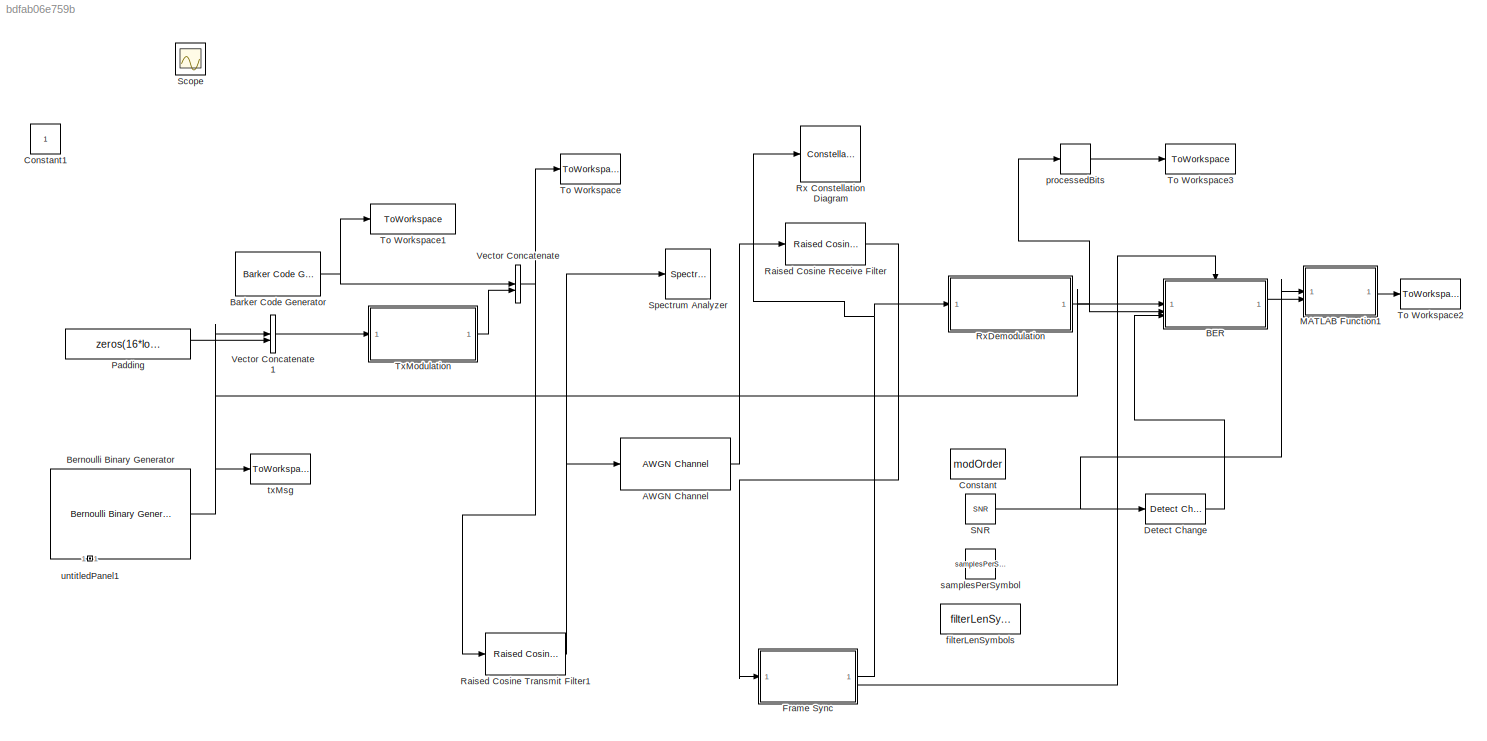
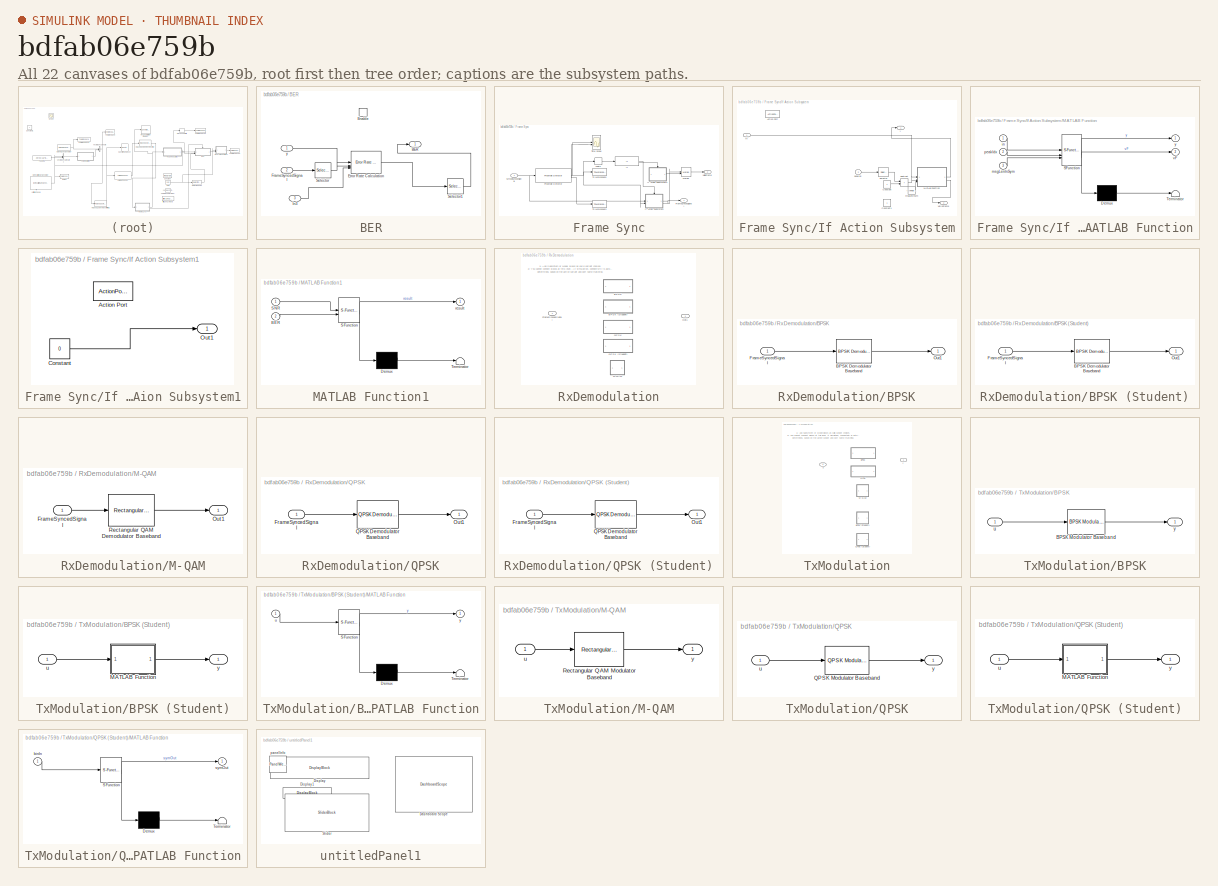
[diagram: thumbnail index - all 22 canvases of the model, root first then tree order]
MODEL slx_bdfab06e759b
KIND model
CONFIG AbsTol = auto
CONFIG EnableMultiTasking = off
CONFIG FixedStep = auto
CONFIG MaxStep = auto
CONFIG MinStep = auto
CONFIG RelTol = 1e-3
CONFIG SampleTimeConstraint = Unconstrained
CONFIG SolverName = VariableStepAuto
CONFIG StartTime = 0.0
CONFIG StopTime = 10
WORKSPACE source: mxarray member
WORKSPACE iSNR = 1
WORKSPACE x = 0
BLOCK [Reference] AWGN Channel  REF=commchan3/AWGN
Channel
  SourceBlock = commchan3/AWGN\nChannel
  SourceType = AWGN Channel
BLOCK [SubSystem] BER
  TreatAsAtomicUnit = on
BLOCK [Outport] BER/BER
BLOCK [EnablePort] BER/Enable
  PropagateVarSize = During execution
BLOCK [Reference] BER/Error Rate Calculation  REF=commsink2/Error Rate
Calculation
  LibrarySourceBlock = commhdlsink/Error Rate\nCalculation
  SourceBlock = commsink2/Error Rate\nCalculation
  SourceType = Error Rate Calculation
BLOCK [Inport] BER/FrameSyncedSignal
  Port = 2
BLOCK [Inport] BER/In3
  Port = 3
BLOCK [Selector] BER/Selector
  IndexOptions = Starting index (dialog)
  Indices = 1
  OutputSizes = (symRate  - 13 -16) * log2(modOrder)
BLOCK [Selector] BER/Selector1
  IndexOptions = Index vector (dialog)
  Indices = 1
  InputPortWidth = 3
  OutputSizes = 1
BLOCK [Inport] BER/y
BLOCK [Reference] Barker Code Generator  REF=commseqgen3/Barker Code
Generator
  SourceBlock = commseqgen3/Barker Code\nGenerator
  SourceType = Barker Code Generator
BLOCK [Reference] Bernoulli Binary Generator  REF=commrandsrc3/Bernoulli Binary
Generator
  SourceBlock = commrandsrc3/Bernoulli Binary\nGenerator
  SourceType = Bernoulli Binary Generator
BLOCK [Constant] Constant
  Value = modOrder
BLOCK [Constant] Constant1
  IOType = siggen
BLOCK [Reference] Detect Change  REF=simulink/Logic and Bit
Operations/Detect
Change
  SourceBlock = simulink/Logic and Bit\nOperations/Detect\nChange
  SourceType = Detect Change
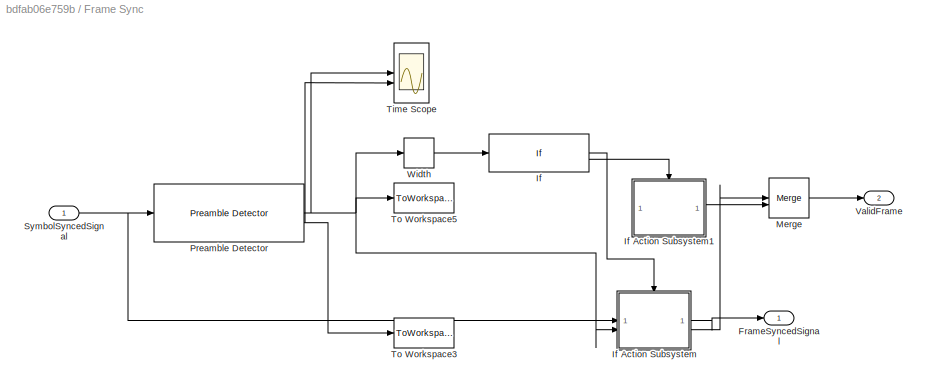
BLOCK [SubSystem] Frame Sync
BLOCK [Outport] Frame Sync/FrameSyncedSignal
BLOCK [If] Frame Sync/If
BLOCK [SubSystem] Frame Sync/If Action Subsystem
  TreatAsAtomicUnit = on
BLOCK [ActionPort] Frame Sync/If Action Subsystem/Action Port
  ActionPortLabel = if(u1 > 0)
  PropagateVarSize = During execution
BLOCK [Constant] Frame Sync/If Action Subsystem/Constant
BLOCK [Constant] Frame Sync/If Action Subsystem/Constant1
  Commented = on
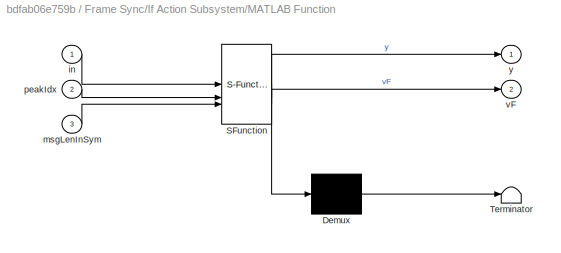
BLOCK [SubSystem] Frame Sync/If Action Subsystem/MATLAB Function
  ErrorFcn = Stateflow.Translate.translate
  PermitHierarchicalResolution = ExplicitOnly
  SFBlockType = MATLAB Function
  TreatAsAtomicUnit = on
BLOCK [Demux] Frame Sync/If Action Subsystem/MATLAB Function/ Demux 
  Outputs = 1
BLOCK [S-Function] Frame Sync/If Action Subsystem/MATLAB Function/ SFunction 
  EnableBusSupport = off
  FunctionName = sf_sfun
  PortCounts = [3 3]
  SFcnIsStateOwnerBlock = off
  SFunctionDeploymentMode = off
  Tag = Stateflow S-Function 1
BLOCK [Terminator] Frame Sync/If Action Subsystem/MATLAB Function/ Terminator 
BLOCK [Inport] Frame Sync/If Action Subsystem/MATLAB Function/in
BLOCK [Inport] Frame Sync/If Action Subsystem/MATLAB Function/msgLenInSym
  Port = 3
BLOCK [Inport] Frame Sync/If Action Subsystem/MATLAB Function/peakIdx
  Port = 2
BLOCK [Outport] Frame Sync/If Action Subsystem/MATLAB Function/vF
  Port = 2
BLOCK [Outport] Frame Sync/If Action Subsystem/MATLAB Function/y
BLOCK [Selector] Frame Sync/If Action Subsystem/Selector
  IndexOptions = Index vector (dialog)
  Indices = 1
  InputPortWidth = 1
  OutputSizes = 1
BLOCK [Sum] Frame Sync/If Action Subsystem/Subtract
  IconShape = rectangular
BLOCK [Outport] Frame Sync/If Action Subsystem/ValidFrame
  Port = 2
BLOCK [Inport] Frame Sync/If Action Subsystem/in
BLOCK [Constant] Frame Sync/If Action Subsystem/msgLenInSym
  Value = (symRate  - 13 -16)
BLOCK [Inport] Frame Sync/If Action Subsystem/peakIdx
  Port = 2
BLOCK [Outport] Frame Sync/If Action Subsystem/y
BLOCK [SubSystem] Frame Sync/If Action Subsystem1
  TreatAsAtomicUnit = on
BLOCK [ActionPort] Frame Sync/If Action Subsystem1/Action Port
  ActionPortLabel = else
BLOCK [Constant] Frame Sync/If Action Subsystem1/Constant
  Value = 0
BLOCK [Outport] Frame Sync/If Action Subsystem1/Out1
BLOCK [Merge] Frame Sync/Merge
BLOCK [Reference] Frame Sync/Preamble Detector  REF=commsync2/Preamble Detector
  SourceBlock = commsync2/Preamble Detector
  SourceType = Preamble Detector
BLOCK [Inport] Frame Sync/SymbolSyncedSignal
BLOCK [Scope] Frame Sync/Time Scope
  ActiveDisplayYMaximum = 25
  ActiveDisplayYMinimum = 0
  Commented = on
  DataLoggingVariableName = ScopeData1
  DefaultConfigurationName = spbscopes.TimeScopeBlockCfg
  Floating = off
  FrameBasedProcessingString = Columns as channels (frame based)
  GraphicalSettings = {"Style":{"BackgroundColor":[0.12941176470588237,0.12941176470588237,0.12941176470588237],"AxesColor":[0.07058823529411765,0.07058823529411765,0.07058823529411765],"LabelsColor":[0.8509803921568627,0.8509803921568627,0.8509803921568627],"PreserveColors":false,"Visible":[true,true],"LineStyle":["none","none"],"LineWidth":[0.75,0.75],"BarWidth":[0.9,0.9],"LineColor":["auto","auto"],"LineFaceAlpha":[...<+2114ch>
  MultipleDisplayCache = [{"MaxYLimMag":22.49765,"MaxYLimReal":25,"MinYLimMag":0,"MinYLimReal":0,"PlotAsMagnitudePhase":false,"ShowGrid":true,"ShowLegend":true,"Title":"Preamble Detector Output","YLabel":"Amplitude"}]
  NumInputPorts = 2
  OpenAtSimulationStart = on
  ScopeFrameLocation = window
  ShowLegend = on
  ShowTimeAxisLabel = on
  TimeAxisLabels = All
  TimeUnits = Metric (based on Time Span)
  Title = Preamble Detector Output
  UserDataPersistent = on
  Visible = on
  WasSavedAsWebScope = on
  WindowPosition = [2.000000,100.000000,571.000000,574.000000,]
  YLabel = Amplitude
BLOCK [ToWorkspace] Frame Sync/To Workspace3
  FixptAsFi = on
  MaxDataPoints = inf
  SampleTime = -1
  Save2DSignal = 2-D array (concatenate along first dimension)
  SaveFormat = Timeseries
  VariableName = corrResult
BLOCK [ToWorkspace] Frame Sync/To Workspace5
  FixptAsFi = on
  MaxDataPoints = inf
  SampleTime = -1
  SaveFormat = Structure
  VariableName = fsIdx
BLOCK [Outport] Frame Sync/ValidFrame
  Port = 2
BLOCK [Width] Frame Sync/Width
BLOCK [SubSystem] MATLAB Function1
  ErrorFcn = Stateflow.Translate.translate
  PermitHierarchicalResolution = ExplicitOnly
  SFBlockType = MATLAB Function
  TreatAsAtomicUnit = on
BLOCK [Demux] MATLAB Function1/ Demux 
  Outputs = 1
BLOCK [S-Function] MATLAB Function1/ SFunction 
  EnableBusSupport = off
  FunctionName = sf_sfun
  PortCounts = [2 2]
  SFcnIsStateOwnerBlock = off
  SFunctionDeploymentMode = off
  Tag = Stateflow S-Function 5
BLOCK [Terminator] MATLAB Function1/ Terminator 
BLOCK [Inport] MATLAB Function1/BER
  Port = 2
BLOCK [Inport] MATLAB Function1/SNR
BLOCK [Outport] MATLAB Function1/result
  VectorParamsAs1DForOutWhenUnconnected = off
BLOCK [Constant] Padding
  SampleTime = -1
  Value = zeros(16*log2(modOrder),1)
BLOCK [Reference] Raised Cosine Receive Filter  REF=commfilt2/Raised Cosine
Receive Filter
  SourceBlock = commfilt2/Raised Cosine\nReceive Filter
  SourceType = Raised Cosine Receive Filter
BLOCK [Reference] Raised Cosine Transmit Filter1  REF=commfilt2/Raised Cosine
Transmit Filter
  SourceBlock = commfilt2/Raised Cosine\nTransmit Filter
  SourceType = Raised Cosine Transmit Filter
BLOCK [ConstellationDiagram] Rx Constellation Diagram
  AxesLimits = [-2.68,2.53]
  GraphicalSettings = {"Style":{"BackgroundColor":[0.12941176470588237,0.12941176470588237,0.12941176470588237],"AxesColor":[0.070588235294117646,0.070588235294117646,0.070588235294117646],"LabelsColor":[0.85098039215686272,0.85098039215686272,0.85098039215686272],"LineStyle":["NONE","NONE"],"LineColor":[[1,0.90980392156862744,0.39215686274509803],[1,0,0]],"LineWidth":[1,1],"Marker":[".","none"],"IsRefLine":[false,true...<+224ch>
  ReferenceConstellation = BPSK
  ScopeFrameLocation = window
  ShowReferenceConstellation = off
  SymbolsToDisplay = 100
  Visible = on
  WasSavedAsWebScope = on
  WindowPosition = [320.000000,105.000000,737.000000,703.000000,]
  XLimits = [-2.68,2.53]
  YLimits = [-2.68,2.53]
BLOCK [SubSystem] RxDemodulation
  Variant = on
BLOCK [SubSystem] RxDemodulation/BPSK
  VariantControl = modScheme=="BPSK"
BLOCK [SubSystem] RxDemodulation/BPSK (Student)
  VariantControl = modScheme=="BPSK (Student)"
BLOCK [Reference] RxDemodulation/BPSK (Student)/BPSK Demodulator Baseband  REF=commdigbbndpm3/BPSK
Demodulator
Baseband
  SourceBlock = commdigbbndpm3/BPSK\nDemodulator\nBaseband
  SourceType = BPSK Demodulator Baseband
BLOCK [Inport] RxDemodulation/BPSK (Student)/FrameSyncedSignal
BLOCK [Outport] RxDemodulation/BPSK (Student)/Out1
BLOCK [Reference] RxDemodulation/BPSK/BPSK Demodulator Baseband  REF=commdigbbndpm3/BPSK
Demodulator
Baseband
  SourceBlock = commdigbbndpm3/BPSK\nDemodulator\nBaseband
  SourceType = BPSK Demodulator Baseband
BLOCK [Inport] RxDemodulation/BPSK/FrameSyncedSignal
BLOCK [Outport] RxDemodulation/BPSK/Out1
BLOCK [Inport] RxDemodulation/FrameSyncedSignal
BLOCK [SubSystem] RxDemodulation/M-QAM
  VariantControl = modScheme=="M-QAM"
BLOCK [Inport] RxDemodulation/M-QAM/FrameSyncedSignal
BLOCK [Outport] RxDemodulation/M-QAM/Out1
BLOCK [Reference] RxDemodulation/M-QAM/Rectangular QAM Demodulator Baseband  REF=commdigbbndam3/Rectangular QAM
Demodulator
Baseband
  SourceBlock = commdigbbndam3/Rectangular QAM\nDemodulator\nBaseband
  SourceType = Rectangular QAM Demodulator Baseband
BLOCK [Outport] RxDemodulation/Out1
BLOCK [SubSystem] RxDemodulation/QPSK
  VariantControl = modScheme=="QPSK"
BLOCK [SubSystem] RxDemodulation/QPSK (Student)
  VariantControl = modScheme=="QPSK (Student)"
BLOCK [Inport] RxDemodulation/QPSK (Student)/FrameSyncedSignal
BLOCK [Outport] RxDemodulation/QPSK (Student)/Out1
BLOCK [Reference] RxDemodulation/QPSK (Student)/QPSK Demodulator Baseband  REF=commdigbbndpm3/QPSK
Demodulator
Baseband
  LibrarySourceBlock = commhdldigbbndpm/QPSK\nDemodulator\nBaseband
  SourceBlock = commdigbbndpm3/QPSK\nDemodulator\nBaseband
  SourceType = QPSK Demodulator Baseband
BLOCK [Inport] RxDemodulation/QPSK/FrameSyncedSignal
BLOCK [Outport] RxDemodulation/QPSK/Out1
BLOCK [Reference] RxDemodulation/QPSK/QPSK Demodulator Baseband  REF=commdigbbndpm3/QPSK
Demodulator
Baseband
  LibrarySourceBlock = commhdldigbbndpm/QPSK\nDemodulator\nBaseband
  SourceBlock = commdigbbndpm3/QPSK\nDemodulator\nBaseband
  SourceType = QPSK Demodulator Baseband
BLOCK [Constant] SNR
  Value = SNR
  VectorParams1D = off
BLOCK [Scope] Scope
  ActiveDisplayYMaximum = 0.49987
  ActiveDisplayYMinimum = 0.49969
  DataLoggingVariableName = ScopeData1
  Floating = off
  GraphicalSettings = {"GraphicalSettings":{"LegacySettings":true,"Style":{"Style":{"AxesColor":"[0 0 0]","ChannelNames":[""],"ColorOrder":"[1 0.909803921568627 0.392156862745098;0.149019607843137 0.549019607843137 0.866666666666667;0.96078431372549 0.466666666666667 0.16078431372549;0.286274509803922 0.858823529411765 0.250980392156863;0.752941176470588 0.36078431372549 0.984313725490196;0.423529411764706 0.9568627450...<+432ch>
  IOType = viewer
  MultipleDisplayCache = [{"MaxYLimMag":0.49987,"MaxYLimReal":0.49987,"MinYLimMag":0.49969,"MinYLimReal":0.49969,"PlotAsMagnitudePhase":false,"ShowGrid":true,"ShowLegend":false,"Title":"%<SignalLabel>","YLabel":""}]
  NumInputPorts = 1
  WasSavedAsWebScope = on
  WindowPosition = [409 194 622 513]
BLOCK [SpectrumAnalyzer] Spectrum Analyzer
  Commented = on
  ExpandToolstrip = on
  GraphicalSettings = {"GraphicalSettings":{"Style":{"BackgroundColor":[0.12941176470588237,0.12941176470588237,0.12941176470588237],"AxesColor":[0.070588235294117646,0.070588235294117646,0.070588235294117646],"LabelsColor":[0.85098039215686272,0.85098039215686272,0.85098039215686272],"PreserveColors":false,"Visible":true,"LineStyle":["-"],"LineWidth":1.5,"BarWidth":0.9,"LineColor":[1,0.90980392156862744,0.392156862745...<+1171ch>
  PlotAsTwoSidedSpectrum = off
  ScopeFrameLocation = window
  SelectedToolstripTab = spectrumAnalyzerToolstrip.estimationTab
  Span = 399999.99999999994
  StartFrequency = -199999.99999999997
  StopFrequency = 199999.99999999997
  WasSavedAsWebScope = on
  WindowPosition = [589.000000,16.000000,654.000000,620.000000,]
  YLimits = [-62.6319 17.8917]
BLOCK [ToWorkspace] To Workspace
  FixptAsFi = on
  MaxDataPoints = inf
  SampleTime = -1
  Save2DSignal = 2-D array (concatenate along first dimension)
  VariableName = txFrame
BLOCK [ToWorkspace] To Workspace1
  FixptAsFi = on
  MaxDataPoints = inf
  SampleTime = -1
  Save2DSignal = 2-D array (concatenate along first dimension)
  VariableName = barkerCodeBipolar
BLOCK [ToWorkspace] To Workspace2
  FixptAsFi = on
  MaxDataPoints = inf
  SampleTime = -1
  VariableName = SNRvBER
BLOCK [ToWorkspace] To Workspace3
  FixptAsFi = on
  MaxDataPoints = inf
  SampleTime = -1
  SaveFormat = Timeseries
  VariableName = processedBits
BLOCK [SubSystem] TxModulation
  Variant = on
BLOCK [SubSystem] TxModulation/BPSK
  VariantControl = modScheme=="BPSK"
BLOCK [SubSystem] TxModulation/BPSK (Student)
  VariantControl = modScheme=="BPSK (Student)"
BLOCK [SubSystem] TxModulation/BPSK (Student)/MATLAB Function
  ErrorFcn = Stateflow.Translate.translate
  PermitHierarchicalResolution = ExplicitOnly
  SFBlockType = MATLAB Function
  TreatAsAtomicUnit = on
BLOCK [Demux] TxModulation/BPSK (Student)/MATLAB Function/ Demux 
  Outputs = 1
BLOCK [S-Function] TxModulation/BPSK (Student)/MATLAB Function/ SFunction 
  EnableBusSupport = off
  FunctionName = sf_sfun
  PortCounts = [1 2]
  SFcnIsStateOwnerBlock = off
  SFunctionDeploymentMode = off
  Tag = Stateflow S-Function 3
BLOCK [Terminator] TxModulation/BPSK (Student)/MATLAB Function/ Terminator 
BLOCK [Inport] TxModulation/BPSK (Student)/MATLAB Function/u
BLOCK [Outport] TxModulation/BPSK (Student)/MATLAB Function/y
BLOCK [Inport] TxModulation/BPSK (Student)/u
BLOCK [Outport] TxModulation/BPSK (Student)/y
BLOCK [Reference] TxModulation/BPSK/BPSK Modulator Baseband  REF=commdigbbndpm3/BPSK
Modulator
Baseband
  SourceBlock = commdigbbndpm3/BPSK\nModulator\nBaseband
  SourceType = BPSK Modulator Baseband
BLOCK [Inport] TxModulation/BPSK/u
BLOCK [Outport] TxModulation/BPSK/y
BLOCK [SubSystem] TxModulation/M-QAM
  VariantControl = modScheme=="M-QAM"
BLOCK [Reference] TxModulation/M-QAM/Rectangular QAM Modulator Baseband  REF=commdigbbndam3/Rectangular QAM
Modulator
Baseband
  SourceBlock = commdigbbndam3/Rectangular QAM\nModulator\nBaseband
  SourceType = Rectangular QAM Modulator Baseband
BLOCK [Inport] TxModulation/M-QAM/u
BLOCK [Outport] TxModulation/M-QAM/y
BLOCK [SubSystem] TxModulation/QPSK
  VariantControl = modScheme=="QPSK"
BLOCK [SubSystem] TxModulation/QPSK (Student)
  VariantControl = modScheme=="QPSK (Student)"
BLOCK [SubSystem] TxModulation/QPSK (Student)/MATLAB Function
  ErrorFcn = Stateflow.Translate.translate
  PermitHierarchicalResolution = ExplicitOnly
  SFBlockType = MATLAB Function
  TreatAsAtomicUnit = on
BLOCK [Demux] TxModulation/QPSK (Student)/MATLAB Function/ Demux 
  Outputs = 1
BLOCK [S-Function] TxModulation/QPSK (Student)/MATLAB Function/ SFunction 
  EnableBusSupport = off
  FunctionName = sf_sfun
  PortCounts = [1 2]
  SFcnIsStateOwnerBlock = off
  SFunctionDeploymentMode = off
  Tag = Stateflow S-Function 4
BLOCK [Terminator] TxModulation/QPSK (Student)/MATLAB Function/ Terminator 
BLOCK [Inport] TxModulation/QPSK (Student)/MATLAB Function/binIn
BLOCK [Outport] TxModulation/QPSK (Student)/MATLAB Function/symOut
BLOCK [Inport] TxModulation/QPSK (Student)/u
BLOCK [Outport] TxModulation/QPSK (Student)/y
BLOCK [Reference] TxModulation/QPSK/QPSK Modulator Baseband  REF=commdigbbndpm3/QPSK
Modulator
Baseband
  LibrarySourceBlock = commhdldigbbndpm/QPSK\nModulator\nBaseband
  SourceBlock = commdigbbndpm3/QPSK\nModulator\nBaseband
  SourceType = QPSK Modulator Baseband
BLOCK [Inport] TxModulation/QPSK/u
BLOCK [Outport] TxModulation/QPSK/y
BLOCK [Inport] TxModulation/u
BLOCK [Outport] TxModulation/y
BLOCK [Concatenate] Vector Concatenate
BLOCK [Concatenate] Vector Concatenate1
BLOCK [Constant] filterLenSymbols
  Value = filterLenSymbols
BLOCK [Width] processedBits
BLOCK [Constant] samplesPerSymbol
  Value = samplesPerSymbol
BLOCK [ToWorkspace] txMsg
  FixptAsFi = on
  MaxDataPoints = inf
  SampleTime = -1
  Save2DSignal = 2-D array (concatenate along first dimension)
  VariableName = txMsg
BLOCK [SubSystem] untitledPanel1
  IsWebBlockPanel = on
  Tag = HiddenForWebPanel
BLOCK [DashboardScope] untitledPanel1/Dashboard Scope
  PanelInfo = {"height":234,"left":315,"panelId":"panelId-f31e1c61-8a53-45bb-afd0-f88e0f139d22","top":52,"type":"panelChild","version":"2019b","width":354,"zIndex":1500004}
  Tag = HiddenForWebPanel
  Ymax = 1
  Ymin = 0
BLOCK [DisplayBlock] untitledPanel1/Display
  GridColor = [0.502, 0.502, 0.502]
  LabelPosition = Hide
  PanelInfo = {"height":25,"left":30,"panelId":"panelId-f31e1c61-8a53-45bb-afd0-f88e0f139d22","top":62,"type":"panelChild","version":"2019b","width":131,"zIndex":1500002}
  Tag = HiddenForWebPanel
  Transparency = 1
BLOCK [DisplayBlock] untitledPanel1/Display1
  GridColor = [0.502, 0.502, 0.502]
  LabelPosition = Hide
  PanelInfo = {"height":30,"left":680,"panelId":"panelId-f31e1c61-8a53-45bb-afd0-f88e0f139d22","top":36,"type":"panelChild","version":"2019b","width":135,"zIndex":1500008}
  Tag = HiddenForWebPanel
  Transparency = 1
BLOCK [SliderBlock] untitledPanel1/Slider
  PanelInfo = {"height":88,"left":30,"panelId":"panelId-f31e1c61-8a53-45bb-afd0-f88e0f139d22","top":190,"type":"panelChild","version":"2019b","width":191,"zIndex":1500006}
  ScaleMax = 30
  ScaleMin = -30
  Tag = HiddenForWebPanel
BLOCK [PanelWebBlock] untitledPanel1/panelInfo
  PanelInfo = {"compacted":false,"height":321,"isActiveTab":true,"labels":{"label2052262155":{"deleted":false,"left":32,"settings":{"backgroundColor":"rgba(0, 0, 0, 0)","bold":false,"font":"Arial","fontColor":"black","fontSize":0.84,"italicized":false,"underlined":false},"text":"SNR (dB)","top":171},"label3800272950":{"deleted":false,"left":25,"settings":{"backgroundColor":"rgba(0, 0, 0, 0)","bold":false,"font"...<+804ch>
  PanelSnapshot = iVBORw0KGgoAAAANSUhEUgAAA1IAAAE8CAYAAADKR4AEAAAACXBIWXMAAAsTAAALEwEAmpwYAAAgAElEQVR4nOzdd1hT1/8H8E8mBEICYe8pAoKAGyfOuuueXwd1W3et27qrdSCuKnXvLdq662qLo27Fyd57hgDZ+f1hww8RkFgVre/X8/C0JPfe87knCfLmnnMuI1WjuUsAAAAAAABQLWq1ms2s6SIAAAAAAAA+J0wmU4kgBQAAAAAAoCMEKQAAAAAAAB0hSAEAAAAAAOgIQQoAAAAAAEBHCFIAAAAAAAA6QpACAAAAAADQEYIUAAAAAACAjhCkAAAAAAAAdIQgBQAAAAAAoCMEKQAAAAAAAB0hSAEAAAAAAOiIXdMFAAAAAMCXR5yfz9oSHGym...<+29284ch>
  Tag = HiddenForWebPanel
ANNOTATION RxDemodulation: 1) Add Subsystem or Model blocks as valid variant choices. 2) You cannot connect blocks at this level. At simulation, connectivity is automatically determined, based on the active variant and port name matching.
ANNOTATION TxModulation: 1) Add Subsystem or Model blocks as valid variant choices. 2) You cannot connect blocks at this level. At simulation, connectivity is automatically determined, based on the active variant and port name matching.
LINE AWGN Channel:1 -> Raised Cosine Receive Filter:1
LINE BER/Error Rate Calculation:1 -> BER/Selector1:1
LINE BER/FrameSyncedSignal:1 -> BER/Selector:1
LINE BER/In3:1 -> BER/Error Rate Calculation:3
LINE BER/Selector1:1 -> BER/BER:1
LINE BER/Selector:1 -> BER/Error Rate Calculation:2
LINE BER/y:1 -> BER/Error Rate Calculation:1
LINE BER:1 -> MATLAB Function1:2
NET Barker Code Generator:1 -> To Workspace1:1, Vector Concatenate:1
NET Bernoulli Binary Generator:1 -> BER:1, Vector Concatenate1:1, txMsg:1
LINE Detect Change:1 -> BER:3
LINE Frame Sync/If Action Subsystem/Constant:1 -> Frame Sync/If Action Subsystem/Subtract:2
LINE Frame Sync/If Action Subsystem/MATLAB Function:1 -> Frame Sync/If Action Subsystem/y:1
LINE Frame Sync/If Action Subsystem/MATLAB Function:2 -> Frame Sync/If Action Subsystem/ValidFrame:1
LINE Frame Sync/If Action Subsystem/Selector:1 -> Frame Sync/If Action Subsystem/Subtract:1
LINE Frame Sync/If Action Subsystem/Subtract:1 -> Frame Sync/If Action Subsystem/MATLAB Function:2
LINE Frame Sync/If Action Subsystem/in:1 -> Frame Sync/If Action Subsystem/MATLAB Function:1
LINE Frame Sync/If Action Subsystem/msgLenInSym:1 -> Frame Sync/If Action Subsystem/MATLAB Function:3
LINE Frame Sync/If Action Subsystem/peakIdx:1 -> Frame Sync/If Action Subsystem/Selector:1
LINE Frame Sync/If Action Subsystem1/Constant:1 -> Frame Sync/If Action Subsystem1/Out1:1
LINE Frame Sync/If Action Subsystem1:1 -> Frame Sync/Merge:2
LINE Frame Sync/If Action Subsystem:1 -> Frame Sync/FrameSyncedSignal:1
LINE Frame Sync/If Action Subsystem:2 -> Frame Sync/Merge:1
LINE Frame Sync/If:1 -> Frame Sync/If Action Subsystem:ifaction
LINE Frame Sync/If:2 -> Frame Sync/If Action Subsystem1:ifaction
LINE Frame Sync/Merge:1 -> Frame Sync/ValidFrame:1
NET Frame Sync/Preamble Detector:1 -> Frame Sync/If Action Subsystem:2, Frame Sync/Time Scope:1, Frame Sync/To Workspace5:1, Frame Sync/Width:1
NET Frame Sync/Preamble Detector:2 -> Frame Sync/Time Scope:2, Frame Sync/To Workspace3:1
NET Frame Sync/SymbolSyncedSignal:1 -> Frame Sync/If Action Subsystem:1, Frame Sync/Preamble Detector:1
LINE Frame Sync/Width:1 -> Frame Sync/If:1
NET Frame Sync:1 -> Rx Constellation Diagram:1, RxDemodulation:1
LINE Frame Sync:2 -> BER:enable
LINE MATLAB Function1:1 -> To Workspace2:1
LINE Padding:1 -> Vector Concatenate1:2
LINE Raised Cosine Receive Filter:1 -> Frame Sync:1
NET Raised Cosine Transmit Filter1:1 -> AWGN Channel:1, Spectrum Analyzer:1
LINE RxDemodulation/BPSK (Student)/BPSK Demodulator Baseband:1 -> RxDemodulation/BPSK (Student)/Out1:1
LINE RxDemodulation/BPSK (Student)/FrameSyncedSignal:1 -> RxDemodulation/BPSK (Student)/BPSK Demodulator Baseband:1
LINE RxDemodulation/BPSK/BPSK Demodulator Baseband:1 -> RxDemodulation/BPSK/Out1:1
LINE RxDemodulation/BPSK/FrameSyncedSignal:1 -> RxDemodulation/BPSK/BPSK Demodulator Baseband:1
LINE RxDemodulation/M-QAM/FrameSyncedSignal:1 -> RxDemodulation/M-QAM/Rectangular QAM Demodulator Baseband:1
LINE RxDemodulation/M-QAM/Rectangular QAM Demodulator Baseband:1 -> RxDemodulation/M-QAM/Out1:1
LINE RxDemodulation/QPSK (Student)/FrameSyncedSignal:1 -> RxDemodulation/QPSK (Student)/QPSK Demodulator Baseband:1
LINE RxDemodulation/QPSK (Student)/QPSK Demodulator Baseband:1 -> RxDemodulation/QPSK (Student)/Out1:1
LINE RxDemodulation/QPSK/FrameSyncedSignal:1 -> RxDemodulation/QPSK/QPSK Demodulator Baseband:1
LINE RxDemodulation/QPSK/QPSK Demodulator Baseband:1 -> RxDemodulation/QPSK/Out1:1
NET RxDemodulation:1 -> BER:2, processedBits:1
NET SNR:1 -> Detect Change:1, MATLAB Function1:1
LINE TxModulation/BPSK (Student)/MATLAB Function:1 -> TxModulation/BPSK (Student)/y:1
LINE TxModulation/BPSK (Student)/u:1 -> TxModulation/BPSK (Student)/MATLAB Function:1
LINE TxModulation/BPSK/BPSK Modulator Baseband:1 -> TxModulation/BPSK/y:1
LINE TxModulation/BPSK/u:1 -> TxModulation/BPSK/BPSK Modulator Baseband:1
LINE TxModulation/M-QAM/Rectangular QAM Modulator Baseband:1 -> TxModulation/M-QAM/y:1
LINE TxModulation/M-QAM/u:1 -> TxModulation/M-QAM/Rectangular QAM Modulator Baseband:1
LINE TxModulation/QPSK (Student)/MATLAB Function:1 -> TxModulation/QPSK (Student)/y:1
LINE TxModulation/QPSK (Student)/u:1 -> TxModulation/QPSK (Student)/MATLAB Function:1
LINE TxModulation/QPSK/QPSK Modulator Baseband:1 -> TxModulation/QPSK/y:1
LINE TxModulation/QPSK/u:1 -> TxModulation/QPSK/QPSK Modulator Baseband:1
LINE TxModulation:1 -> Vector Concatenate:2
LINE Vector Concatenate1:1 -> TxModulation:1
NET Vector Concatenate:1 -> Raised Cosine Transmit Filter1:1, To Workspace:1
LINE processedBits:1 -> To Workspace3:1
note: NET lines group one-source signal fan-out (src -> all destinations, sorted); 1:1 wires keep LINE
CHART Frame Sync/If Action
Subsystem/MATLAB Function states=1 transitions=1
  STATE_LABEL 'eML_blk_kernel()'
  STATE_LABEL 'SCRIPT:\nfunction [y,vF] = extractFrame(in,peakIdx, msgLenInSym)\n\n    coder.varsize("y") % declares variables as variable-sized\n   \n    y = zeros(msgLenInSym, 1);\n\n    % Boundary check\n    if (peakIdx + msgLenInSym - 1) > size(in, 1)\n        vF = 0;\n        return \n    end\n\n    for i = 1: msgLenInSym\n        y(i,1) = in(peakIdx  + (i-1));\n    end\n\n    vF = 1;\nend'
CHART TxModulation/BPSK (Student)/MATLAB Function states=1 transitions=1
  STATE_LABEL 'eML_blk_kernel()'
  STATE_LABEL 'SCRIPT:\nfunction y = iBPSKmod(u)\n% internal BPSKmod\n\n\ncoder.extrinsic("BPSKmod")\ny = (0 +0i) * ones(size(u));\n\ny = BPSKmod(u);\n'
CHART TxModulation/QPSK (Student)/MATLAB Function states=1 transitions=1
  STATE_LABEL 'eML_blk_kernel()'
  STATE_LABEL "SCRIPT:\nfunction symOut = QPSKmod(binIn)  % TEMPLATE SOLUTION\n    %  'binIn' is a binary stream (e.g., 0100011...) with\n    %  len(binIn)%log2(modOrder) = 0\n    \n    % Array of all odd-indexed values. (e.g., 0 0 0 1...)\n    odd = binIn(1 : 2 : end);\n    % Array of all even-indexed values. (e.g., 1 0 1 ...)\n    even = binIn(2 : 2 : end);\n    \n    % In case binIn has an odd-length. \n    % (This will...<+175ch>"
CHART MATLAB Function1 states=1 transitions=1
  STATE_LABEL 'eML_blk_kernel()'
  STATE_LABEL "SCRIPT:\nfunction result = snr_ber_array(SNR, BER)\n    % Function to return a 2D array with the given SNR and BER values\n    %\n    % Inputs:\n    %   SNR - Signal-to-Noise Ratio (scalar)\n    %   BER - Bit Error Rate (scalar)\n    %\n    % Output:\n    %   result - 2D array containing the SNR and BER values\n    \n    % Ensure the inputs are scalar\n    if ~isscalar(SNR) || ~isscalar(BER)\n        error('Bo...<+123ch>"
CHART  states=0 transitions=0
CHART  states=0 transitions=0
CHART  states=0 transitions=0
CHART  states=0 transitions=0
